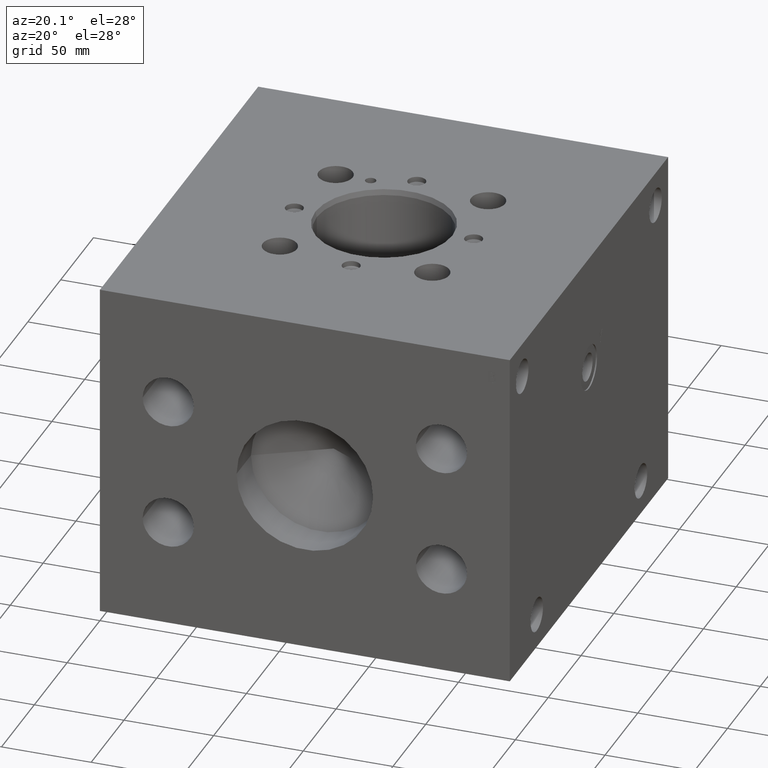
[diagram: clean part render]
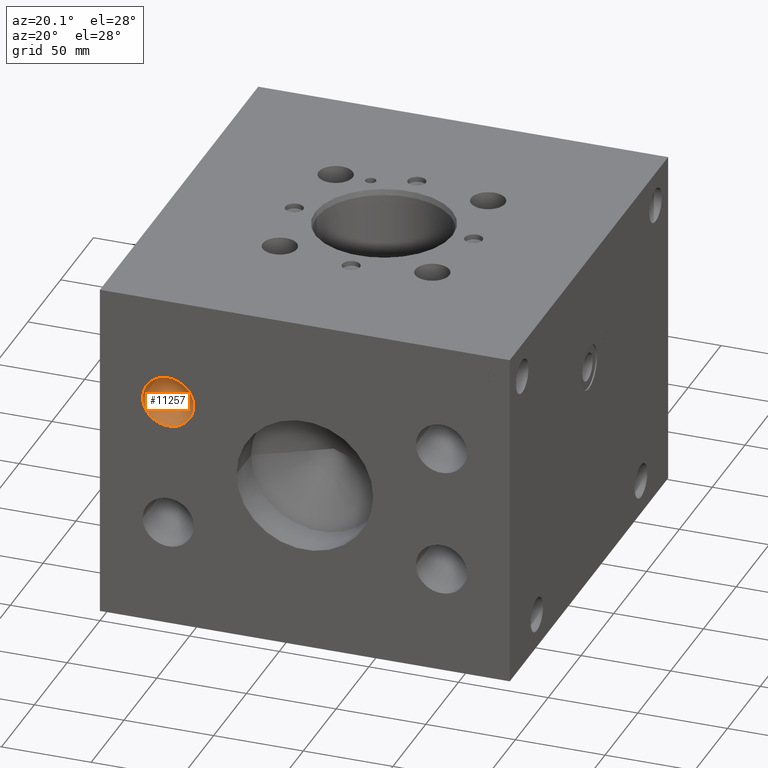
[diagram: same view with one face highlighted and labeled with its STEP entity id]
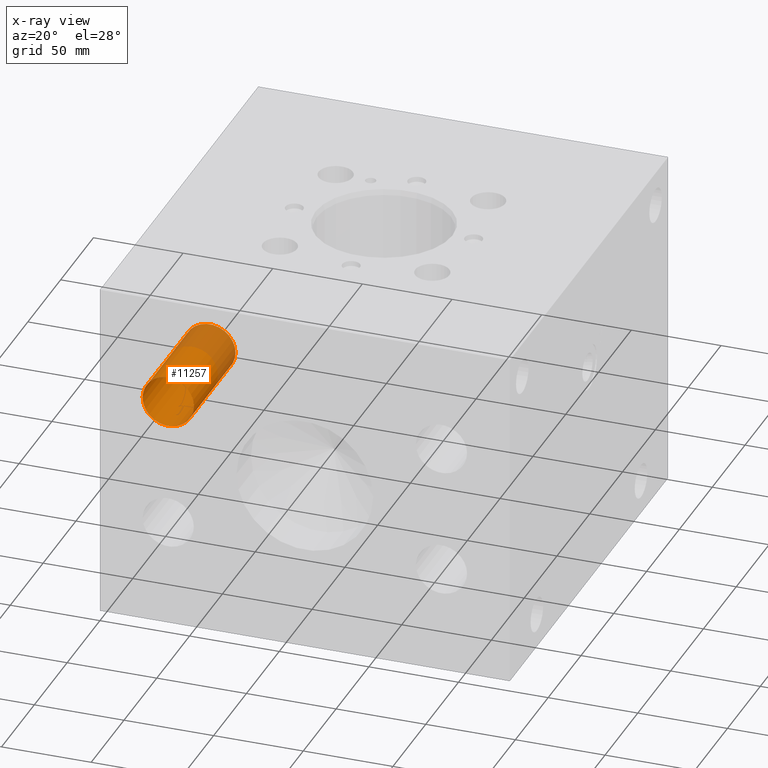
[diagram: x-ray of the same camera — body ghosted, the highlighted face saturated]
A machine part, auxiliary view. The second image highlights one B-rep face of the part: STEP entity #11257.
The next image is the same camera in x-ray: the body ghosted, the highlighted face saturated — about 28% of this face is hidden behind the body in this view.
In plain terms, the highlighted cylindrical surface (bore or boss wall) has radius 14.2875 mm, axis along (0, -1, 0).
Its self-contained STEP definition (entity closure, byte-faithful):
#63=CYLINDRICAL_SURFACE('',#11934,14.2875);
#158=CIRCLE('',#11678,14.2875);
#159=CIRCLE('',#11679,14.2875);
#314=CIRCLE('',#11931,14.2875);
#315=CIRCLE('',#11932,14.2875);
#1311=FACE_OUTER_BOUND('',#1960,.T.);
#1960=EDGE_LOOP('',(#9646,#9647,#9648,#9649,#9650,#9651));
#3085=LINE('',#18940,#4173);
#4173=VECTOR('',#14333,14.2875);
#5016=VERTEX_POINT('',#18291);
#5017=VERTEX_POINT('',#18292);
#5198=VERTEX_POINT('',#18933);
#5199=VERTEX_POINT('',#18934);
#6480=EDGE_CURVE('',#5016,#5017,#158,.T.);
#6481=EDGE_CURVE('',#5017,#5016,#159,.T.);
#6723=EDGE_CURVE('',#5198,#5199,#314,.T.);
#6724=EDGE_CURVE('',#5199,#5198,#315,.T.);
#6726=EDGE_CURVE('',#5017,#5199,#3085,.T.);
#9646=ORIENTED_EDGE('',*,*,#6480,.F.);
#9647=ORIENTED_EDGE('',*,*,#6481,.F.);
#9648=ORIENTED_EDGE('',*,*,#6726,.T.);
#9649=ORIENTED_EDGE('',*,*,#6723,.F.);
#9650=ORIENTED_EDGE('',*,*,#6724,.F.);
#9651=ORIENTED_EDGE('',*,*,#6726,.F.);
#11257=ADVANCED_FACE('',(#1311),#63,.F.);
#11678=AXIS2_PLACEMENT_3D('',#18293,#13746,#13747);
#11679=AXIS2_PLACEMENT_3D('',#18294,#13748,#13749);
#11931=AXIS2_PLACEMENT_3D('',#18935,#14325,#14326);
#11932=AXIS2_PLACEMENT_3D('',#18936,#14327,#14328);
#11934=AXIS2_PLACEMENT_3D('',#18939,#14331,#14332);
#13746=DIRECTION('center_axis',(0.,1.,0.));
#13747=DIRECTION('ref_axis',(1.,0.,0.));
#13748=DIRECTION('center_axis',(0.,1.,0.));
#13749=DIRECTION('ref_axis',(1.,0.,0.));
#14325=DIRECTION('center_axis',(0.,-1.,0.));
#14326=DIRECTION('ref_axis',(1.,0.,0.));
#14327=DIRECTION('center_axis',(0.,-1.,0.));
#14328=DIRECTION('ref_axis',(1.,0.,0.));
#14331=DIRECTION('center_axis',(0.,-1.,0.));
#14332=DIRECTION('ref_axis',(1.,0.,0.));
#14333=DIRECTION('',(0.,1.,0.));
#18291=CARTESIAN_POINT('',(52.3875,0.,130.9624));
#18292=CARTESIAN_POINT('',(23.8125,0.,130.9624));
#18293=CARTESIAN_POINT('Origin',(38.1,0.,130.9624));
#18294=CARTESIAN_POINT('Origin',(38.1,0.,130.9624));
#18933=CARTESIAN_POINT('',(52.3875,63.5,130.9624));
#18934=CARTESIAN_POINT('',(23.8125,63.5,130.9624));
#18935=CARTESIAN_POINT('Origin',(38.1,63.5,130.9624));
#18936=CARTESIAN_POINT('Origin',(38.1,63.5,130.9624));
#18939=CARTESIAN_POINT('Origin',(38.1,31.75,130.9624));
#18940=CARTESIAN_POINT('',(23.8125,31.75,130.9624));